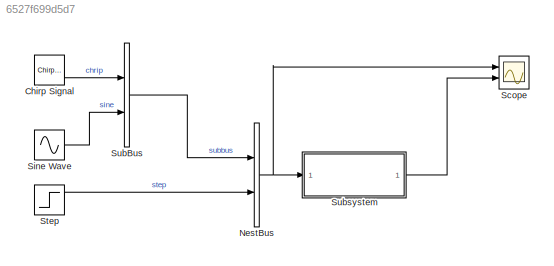
MODEL slx_6527f699d5d7
KIND model
CONFIG AbsTol = auto
CONFIG EnableMultiTasking = off
CONFIG FixedStep = auto
CONFIG MaxStep = auto
CONFIG MinStep = auto
CONFIG RelTol = 1e-3
CONFIG SampleTimeConstraint = Unconstrained
CONFIG Solver = ode3
CONFIG SolverName = ode3
CONFIG StartTime = 0.0
CONFIG StopTime = 10.0
BLOCK [Reference] Chirp Signal  REF=simulink/Sources/Chirp Signal
  Ports = [0, 1]
  SourceBlock = simulink/Sources/Chirp Signal
  SourceProductBaseCode = SL
  SourceType = chirp
BLOCK [BusCreator] NestBus
  DisplayOption = bar
  InheritFromInputs = on
  Inputs = 2
  Ports = [2, 1]
BLOCK [Scope] Scope
  Floating = off
  NumInputPorts = 2
  Ports = [2]
  ScopeSpecificationString = Simulink.scopes.TimeScopeBlockCfg('CurrentConfiguration', extmgr.ConfigurationSet(extmgr.Configuration('Core','General UI',true),extmgr.Configuration('Core','Source UI',true),extmgr.Configuration('Sources','WiredSimulink',true),extmgr.Configuration('Visuals','Time Domain',true,'SerializedDisplays',{struct('MinYLimReal','-1.24516','MaxYLimReal','1.24946','YLabelReal','','MinYLimMag','0.00000','MaxY...<+2117ch>
BLOCK [Sin] Sine Wave
  Ports = [0, 1]
  SampleTime = 0
BLOCK [Step] Step
  SampleTime = 0
BLOCK [BusCreator] SubBus
  DisplayOption = bar
  InheritFromInputs = on
  Inputs = 2
  Ports = [2, 1]
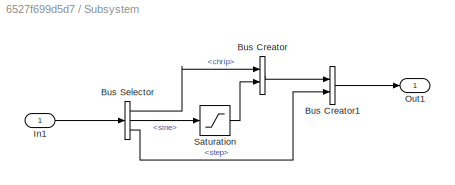
BLOCK [SubSystem] Subsystem
  Ports = [1, 1]
  RequestExecContextInheritance = off
BLOCK [BusCreator] Subsystem/Bus Creator
  DisplayOption = bar
  InheritFromInputs = on
  Inputs = 2
  Ports = [2, 1]
BLOCK [BusCreator] Subsystem/Bus Creator1
  DisplayOption = bar
  InheritFromInputs = on
  Inputs = 2
  Ports = [2, 1]
BLOCK [BusSelector] Subsystem/Bus Selector
  OutputSignals = subbus.chrip,subbus.sine,step
  Ports = [1, 3]
BLOCK [Inport] Subsystem/In1
BLOCK [Outport] Subsystem/Out1
BLOCK [Saturate] Subsystem/Saturation
  LowerLimit = -inf
LINE Chirp Signal:1 -> SubBus:1
NET NestBus:1 -> Scope:1, Subsystem:1
LINE Sine Wave:1 -> SubBus:2
LINE Step:1 -> NestBus:2
LINE SubBus:1 -> NestBus:1
LINE Subsystem/Bus Creator1:1 -> Subsystem/Out1:1
LINE Subsystem/Bus Creator:1 -> Subsystem/Bus Creator1:1
LINE Subsystem/Bus Selector:1 -> Subsystem/Bus Creator:1
LINE Subsystem/Bus Selector:2 -> Subsystem/Saturation:1
LINE Subsystem/Bus Selector:3 -> Subsystem/Bus Creator1:2
LINE Subsystem/In1:1 -> Subsystem/Bus Selector:1
LINE Subsystem/Saturation:1 -> Subsystem/Bus Creator:2
LINE Subsystem:1 -> Scope:2
note: NET lines group one-source signal fan-out (src -> all destinations, sorted); 1:1 wires keep LINE
